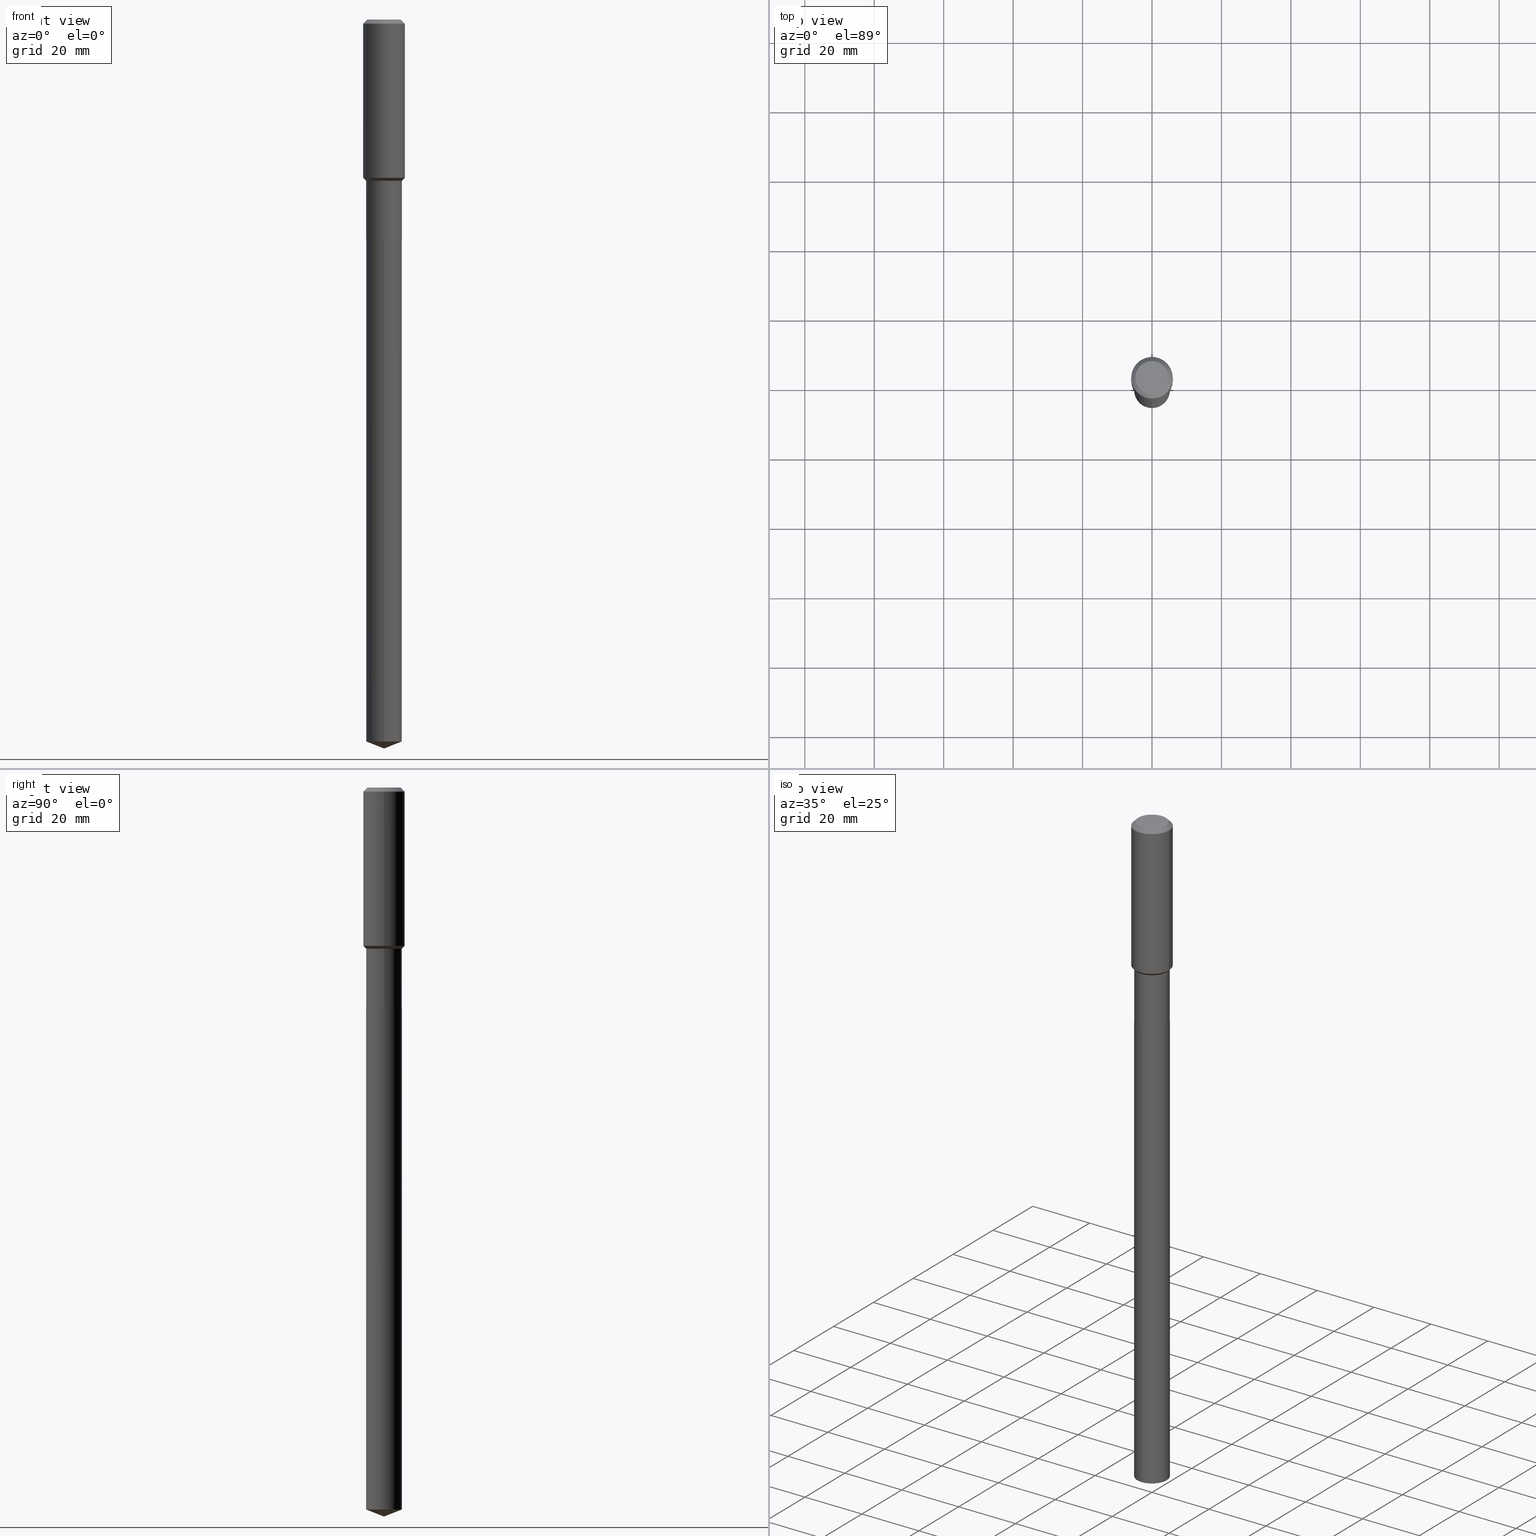
[diagram: canonical four-view strip — front | top / right | iso, engineering-drawing reading convention]
A machine part, canonical four-view strip (front | top / right | iso — engineering-drawing reading convention). The complete STEP part file that produces these views, byte-faithful:
ISO-10303-21;
HEADER;
FILE_DESCRIPTION (( 'STEP AP203' ),
    '1' );
FILE_NAME ('66782.STEP',
    '2024-04-25T06:05:33',
    ( '' ),
    ( '' ),
    'SwSTEP 2.0',
    'SolidWorks 2023',
    '' );
FILE_SCHEMA (( 'CONFIG_CONTROL_DESIGN' ));
ENDSEC;

DATA;
#1 = CARTESIAN_POINT ( 'NONE',  ( 6.109514718492326640E-29, -8.722767828831831042E-15, -2.498299999999999965 ) ) ;
#2 = EDGE_LOOP ( 'NONE', ( #453, #384, #380, #451 ) ) ;
#3 = FACE_OUTER_BOUND ( 'NONE', #84, .T. ) ;
#4 = ORIENTED_EDGE ( 'NONE', *, *, #438, .F. ) ;
#5 = FACE_OUTER_BOUND ( 'NONE', #448, .T. ) ;
#6 = AXIS2_PLACEMENT_3D ( 'NONE', #251, #396, #361 ) ;
#7 = AXIS2_PLACEMENT_3D ( 'NONE', #429, #91, #95 ) ;
#8 = VERTEX_POINT ( 'NONE', #293 ) ;
#9 = CARTESIAN_POINT ( 'NONE',  ( -0.2022500000000000131, -7.285695145757028125E-15, -2.498299999999999965 ) ) ;
#10 = ORIENTED_EDGE ( 'NONE', *, *, #294, .T. ) ;
#11 = CYLINDRICAL_SURFACE ( 'NONE', #211, 0.2362000000000001043 ) ;
#12 = LINE ( 'NONE', #363, #400 ) ;
#13 = CARTESIAN_POINT ( 'NONE',  ( 2.021924021348307157E-28, -2.886741859814043896E-14, -8.268000000000000682 ) ) ;
#14 = CARTESIAN_POINT ( 'NONE',  ( 6.109514718492326640E-29, -8.722767828831831042E-15, -2.498299999999999965 ) ) ;
#15 = CARTESIAN_POINT ( 'NONE',  ( 0.000000000000000000, 0.000000000000000000, 0.000000000000000000 ) ) ;
#16 = ORIENTED_EDGE ( 'NONE', *, *, #63, .F. ) ;
#17 = EDGE_CURVE ( 'NONE', #347, #389, #53, .T. ) ;
#18 = DATE_AND_TIME ( #138, #329 ) ;
#19 = ORIENTED_EDGE ( 'NONE', *, *, #417, .T. ) ;
#20 = EDGE_CURVE ( 'NONE', #240, #303, #445, .T. ) ;
#21 = AXIS2_PLACEMENT_3D ( 'NONE', #46, #214, #94 ) ;
#22 = CONICAL_SURFACE ( 'NONE', #78, 99.94676754584064327, 1.195550537616121733 ) ;
#23 = LINE ( 'NONE', #288, #122 ) ;
#24 = PERSON_AND_ORGANIZATION ( #106, #67 ) ;
#25 = APPROVAL ( #341, 'UNSPECIFIED' ) ;
#26 = LINE ( 'NONE', #114, #456 ) ;
#27 = FACE_OUTER_BOUND ( 'NONE', #418, .T. ) ;
#28 = PERSON_AND_ORGANIZATION ( #106, #67 ) ;
#29 = DIRECTION ( 'NONE',  ( 1.000000000000000000, -6.982962677686264344E-15, 0.000000000000000000 ) ) ;
#30 = VERTEX_POINT ( 'NONE', #462 ) ;
#31 = SECURITY_CLASSIFICATION_LEVEL ( 'unclassified' ) ;
#32 = DIRECTION ( 'NONE',  ( -2.445481399792340349E-29, 3.491463304080846425E-15, 1.000000000000000000 ) ) ;
#33 = ORIENTED_EDGE ( 'NONE', *, *, #63, .T. ) ;
#34 = CARTESIAN_POINT ( 'NONE',  ( 0.2027500000000000135, -1.013681777106329942E-14, -2.497799999999999798 ) ) ;
#35 = CONICAL_SURFACE ( 'NONE', #246, 0.2022500000000000131, 0.7853981633972775267 ) ;
#36 = ORIENTED_EDGE ( 'NONE', *, *, #70, .T. ) ;
#37 = DIRECTION ( 'NONE',  ( 2.445468806185136597E-29, -3.491481338843145583E-15, -1.000000000000000000 ) ) ;
#38 = CC_DESIGN_PERSON_AND_ORGANIZATION_ASSIGNMENT ( #28, #187, ( #413 ) ) ;
#39 = ORIENTED_EDGE ( 'NONE', *, *, #115, .F. ) ;
#40 = EDGE_CURVE ( 'NONE', #88, #343, #423, .T. ) ;
#41 = LINE ( 'NONE', #9, #148 ) ;
#42 = ORIENTED_EDGE ( 'NONE', *, *, #306, .F. ) ;
#43 = CARTESIAN_POINT ( 'NONE',  ( -1.415795682900829336E-15, -0.2027500000000087288, -2.498299999999999521 ) ) ;
#44 = AXIS2_PLACEMENT_3D ( 'NONE', #93, #62, #99 ) ;
#45 = CIRCLE ( 'NONE', #435, 0.2027500000000000135 ) ;
#46 = CARTESIAN_POINT ( 'NONE',  ( 6.108291984089233838E-29, -8.721022088162408749E-15, -2.497799999999999798 ) ) ;
#47 = EDGE_CURVE ( 'NONE', #367, #343, #49, .T. ) ;
#48 = DIRECTION ( 'NONE',  ( 0.7071067811864267805, -2.468850131080992517E-15, 0.7071067811866682540 ) ) ;
#49 = LINE ( 'NONE', #98, #482 ) ;
#50 = CARTESIAN_POINT ( 'NONE',  ( 0.2027499999999999303, -7.802413347912771762E-15, -1.829200000000000159 ) ) ;
#51 = DIRECTION ( 'NONE',  ( -2.445481399792340349E-29, 3.491463304080846425E-15, 1.000000000000000000 ) ) ;
#52 = AXIS2_PLACEMENT_3D ( 'NONE', #421, #85, #348 ) ;
#53 = LINE ( 'NONE', #209, #112 ) ;
#54 = AXIS2_PLACEMENT_3D ( 'NONE', #318, #316, #159 ) ;
#55 = DATE_AND_TIME ( #431, #398 ) ;
#56 = DIRECTION ( 'NONE',  ( -2.445468806185136597E-29, 3.491481338843145583E-15, 1.000000000000000000 ) ) ;
#57 = UNCERTAINTY_MEASURE_WITH_UNIT (LENGTH_MEASURE( 1.000000000000000082E-05 ), #364, 'distance_accuracy_value', 'NONE');
#58 = CARTESIAN_POINT ( 'NONE',  ( 6.109514718492326640E-29, -8.722767828831831042E-15, -2.498299999999999965 ) ) ;
#59 = EDGE_CURVE ( 'NONE', #141, #88, #12, .T. ) ;
#60 = PERSON_AND_ORGANIZATION ( #106, #67 ) ;
#61 = CC_DESIGN_PERSON_AND_ORGANIZATION_ASSIGNMENT ( #300, #401, ( #413 ) ) ;
#62 = DIRECTION ( 'NONE',  ( -2.445468806185136597E-29, 3.491481338843145583E-15, 1.000000000000000000 ) ) ;
#63 = EDGE_CURVE ( 'NONE', #303, #240, #292, .T. ) ;
#64 = SHAPE_DEFINITION_REPRESENTATION ( #263, #225 ) ;
#65 = DIRECTION ( 'NONE',  ( -2.445468806185136597E-29, 3.491481338843145583E-15, 1.000000000000000000 ) ) ;
#66 = EDGE_CURVE ( 'NONE', #343, #88, #376, .T. ) ;
#67 = ORGANIZATION ( 'UNSPECIFIED', 'UNSPECIFIED', '' ) ;
#68 = AXIS2_PLACEMENT_3D ( 'NONE', #255, #51, #169 ) ;
#69 = CARTESIAN_POINT ( 'NONE',  ( 1.440625396753804185E-15, 0.2027499999999912983, -2.498300000000000409 ) ) ;
#70 = EDGE_CURVE ( 'NONE', #30, #326, #130, .T. ) ;
#71 = FACE_OUTER_BOUND ( 'NONE', #307, .T. ) ;
#72 = EDGE_LOOP ( 'NONE', ( #75, #387, #309 ) ) ;
#73 = ADVANCED_FACE ( 'NONE', ( #287 ), #172, .T. ) ;
#74 = CYLINDRICAL_SURFACE ( 'NONE', #237, 0.2027499999999999858 ) ;
#75 = ORIENTED_EDGE ( 'NONE', *, *, #17, .F. ) ;
#76 = LOCAL_TIME ( 2, 5, 33.00000000000000000, #472 ) ;
#77 = CARTESIAN_POINT ( 'NONE',  ( 0.000000000000000000, 0.000000000000000000, 0.000000000000000000 ) ) ;
#78 = AXIS2_PLACEMENT_3D ( 'NONE', #452, #342, #258 ) ;
#79 = ADVANCED_FACE ( 'NONE', ( #250 ), #133, .T. ) ;
#80 = ORIENTED_EDGE ( 'NONE', *, *, #115, .T. ) ;
#81 = LINE ( 'NONE', #43, #359 ) ;
#82 = EDGE_LOOP ( 'NONE', ( #242, #356, #116, #311 ) ) ;
#83 = FACE_OUTER_BOUND ( 'NONE', #2, .T. ) ;
#84 = EDGE_LOOP ( 'NONE', ( #206, #420, #19, #408 ) ) ;
#85 = DIRECTION ( 'NONE',  ( -2.445481399792340349E-29, 3.491463304080846425E-15, 1.000000000000000000 ) ) ;
#86 = AXIS2_PLACEMENT_3D ( 'NONE', #128, #252, #283 ) ;
#87 = AXIS2_PLACEMENT_3D ( 'NONE', #58, #269, #402 ) ;
#88 = VERTEX_POINT ( 'NONE', #324 ) ;
#89 = DIRECTION ( 'NONE',  ( -2.445468806185136597E-29, 3.491481338843145583E-15, 1.000000000000000000 ) ) ;
#90 = APPLICATION_CONTEXT ( 'configuration controlled 3d designs of mechanical parts and assemblies' ) ;
#91 = DIRECTION ( 'NONE',  ( -2.445468806185136597E-29, 3.491481338843145583E-15, 1.000000000000000000 ) ) ;
#92 = EDGE_CURVE ( 'NONE', #160, #247, #167, .T. ) ;
#93 = CARTESIAN_POINT ( 'NONE',  ( 6.109514718492326640E-29, -8.722767828831831042E-15, -2.498299999999999965 ) ) ;
#94 = DIRECTION ( 'NONE',  ( 1.000000000000000000, -6.982962677686271444E-15, 0.000000000000000000 ) ) ;
#95 = DIRECTION ( 'NONE',  ( 1.000000000000000000, -6.982962677686266711E-15, 4.876176775795935793E-29 ) ) ;
#96 = CONICAL_SURFACE ( 'NONE', #142, 0.2022500000000000131, 0.7853981633972775267 ) ;
#97 = DIRECTION ( 'NONE',  ( -2.445468806185136597E-29, 3.491481338843145583E-15, 1.000000000000000000 ) ) ;
#98 = CARTESIAN_POINT ( 'NONE',  ( -0.2362000000000001043, 1.678301941865357380E-15, -1.161852468318209317E-29 ) ) ;
#99 = DIRECTION ( 'NONE',  ( 1.000000000000000000, -6.982962677686264344E-15, 0.000000000000000000 ) ) ;
#100 = DESIGN_CONTEXT ( 'detailed design', #90, 'design' ) ;
#101 = ADVANCED_FACE ( 'NONE', ( #71 ), #35, .T. ) ;
#102 = COORDINATED_UNIVERSAL_TIME_OFFSET ( 5, 0, .BEHIND. ) ;
#103 = APPROVAL_DATE_TIME ( #265, #25 ) ;
#104 = EDGE_CURVE ( 'NONE', #367, #141, #406, .T. ) ;
#105 = DIRECTION ( 'NONE',  ( -2.445468806185136597E-29, 3.491481338843145583E-15, 1.000000000000000000 ) ) ;
#106 = PERSON ( 'UNSPECIFIED', 'UNSPECIFIED', 'UNSPECIFIED', ('UNSPECIFIED'), ('UNSPECIFIED'), ('UNSPECIFIED') ) ;
#107 = EDGE_CURVE ( 'NONE', #303, #486, #26, .T. ) ;
#108 = DATE_AND_TIME ( #135, #76 ) ;
#109 = DIRECTION ( 'NONE',  ( -6.497071151882126147E-15, -0.9304175679820254619, 0.3665012267242949706 ) ) ;
#110 = EDGE_CURVE ( 'NONE', #389, #197, #113, .T. ) ;
#111 = EDGE_LOOP ( 'NONE', ( #212, #134 ) ) ;
#112 = VECTOR ( 'NONE', #432, 39.37007874015748143 ) ;
#113 = CIRCLE ( 'NONE', #202, 0.2027500000000000135 ) ;
#114 = CARTESIAN_POINT ( 'NONE',  ( -0.2027499999999999858, 1.440625396753603026E-15, -9.973140895491819537E-30 ) ) ;
#115 = EDGE_CURVE ( 'NONE', #197, #389, #45, .T. ) ;
#116 = ORIENTED_EDGE ( 'NONE', *, *, #40, .T. ) ;
#117 = COORDINATED_UNIVERSAL_TIME_OFFSET ( 5, 0, .BEHIND. ) ;
#118 = DIRECTION ( 'NONE',  ( -2.445481399792340349E-29, 3.491463304080846425E-15, 1.000000000000000000 ) ) ;
#119 = EDGE_LOOP ( 'NONE', ( #124, #490, #377, #471 ) ) ;
#120 = CARTESIAN_POINT ( 'NONE',  ( 1.440625396753803199E-15, 0.2027499999999714253, -8.188134651069074010 ) ) ;
#121 = ORIENTED_EDGE ( 'NONE', *, *, #107, .F. ) ;
#122 = VECTOR ( 'NONE', #132, 39.37007874015748143 ) ;
#123 = CARTESIAN_POINT ( 'NONE',  ( 6.109514718492326640E-29, -8.722767828831831042E-15, -2.498299999999999965 ) ) ;
#124 = ORIENTED_EDGE ( 'NONE', *, *, #20, .T. ) ;
#125 = CARTESIAN_POINT ( 'NONE',  ( -9.427742298522546243E-47, 1.346031739168365344E-32, 3.855188123715862256E-18 ) ) ;
#126 = ORIENTED_EDGE ( 'NONE', *, *, #40, .F. ) ;
#127 = CARTESIAN_POINT ( 'NONE',  ( 0.2022500000000000131, -1.013507203039387713E-14, -2.498299999999999965 ) ) ;
#128 = CARTESIAN_POINT ( 'NONE',  ( 1.155239464041865331E-30, -1.649375784469511612E-16, -0.04724000000000027483 ) ) ;
#129 = DIRECTION ( 'NONE',  ( -0.7071067811865453523, 2.468850131082234184E-15, -0.7071067811865496822 ) ) ;
#130 = CIRCLE ( 'NONE', #298, 0.2022500000000000131 ) ;
#131 = DIRECTION ( 'NONE',  ( -2.445468806185136877E-29, 3.491481338843145188E-15, 1.000000000000000000 ) ) ;
#132 = DIRECTION ( 'NONE',  ( -2.445468806185136877E-29, 3.491481338843145188E-15, 1.000000000000000000 ) ) ;
#133 = CYLINDRICAL_SURFACE ( 'NONE', #68, 0.2027500000000000135 ) ;
#134 = ORIENTED_EDGE ( 'NONE', *, *, #465, .T. ) ;
#135 = CALENDAR_DATE ( 2024, 25, 4 ) ;
#136 = APPROVAL_PERSON_ORGANIZATION ( #190, #25, #443 ) ;
#137 = ORIENTED_EDGE ( 'NONE', *, *, #449, .F. ) ;
#138 = CALENDAR_DATE ( 2024, 25, 4 ) ;
#139 = DATE_TIME_ROLE ( 'classification_date' ) ;
#140 = AXIS2_PLACEMENT_3D ( 'NONE', #241, #37, #381 ) ;
#141 = VERTEX_POINT ( 'NONE', #368 ) ;
#142 = AXIS2_PLACEMENT_3D ( 'NONE', #337, #105, #29 ) ;
#143 = PLANE ( 'NONE',  #87 ) ;
#144 = PERSON_AND_ORGANIZATION ( #106, #67 ) ;
#145 = DIRECTION ( 'NONE',  ( 1.000000000000000000, -6.982962677686265922E-15, 4.876176775795935793E-29 ) ) ;
#146 = DIRECTION ( 'NONE',  ( -2.445481399792340349E-29, 3.491463304080846425E-15, 1.000000000000000000 ) ) ;
#147 = VERTEX_POINT ( 'NONE', #69 ) ;
#148 = VECTOR ( 'NONE', #164, 39.37007874015748143 ) ;
#149 = AXIS2_PLACEMENT_3D ( 'NONE', #150, #305, #375 ) ;
#150 = CARTESIAN_POINT ( 'NONE',  ( 4.391450608706959640E-29, -6.269827614227578953E-15, -1.795750000000000179 ) ) ;
#151 = APPROVAL ( #218, 'UNSPECIFIED' ) ;
#152 = ORIENTED_EDGE ( 'NONE', *, *, #294, .F. ) ;
#153 = DIRECTION ( 'NONE',  ( -2.445468806185136597E-29, 3.491481338843145583E-15, 1.000000000000000000 ) ) ;
#154 = ORIENTED_EDGE ( 'NONE', *, *, #306, .T. ) ;
#155 = FACE_OUTER_BOUND ( 'NONE', #82, .T. ) ;
#156 = APPLICATION_CONTEXT ( 'configuration controlled 3d designs of mechanical parts and assemblies' ) ;
#157 = ORIENTED_EDGE ( 'NONE', *, *, #224, .T. ) ;
#158 = VECTOR ( 'NONE', #285, 39.37007874015748143 ) ;
#159 = DIRECTION ( 'NONE',  ( 1.000000000000000000, -6.982962677686264344E-15, 0.000000000000000000 ) ) ;
#160 = VERTEX_POINT ( 'NONE', #483 ) ;
#161 = ADVANCED_FACE ( 'NONE', ( #231 ), #268, .T. ) ;
#162 = CARTESIAN_POINT ( 'NONE',  ( -0.2361999999999999933, 1.484438206022545019E-15, -0.04724000000000027483 ) ) ;
#163 = ORIENTED_EDGE ( 'NONE', *, *, #473, .T. ) ;
#164 = DIRECTION ( 'NONE',  ( -0.7071067811864267805, 7.493145998869918709E-15, 0.7071067811866682540 ) ) ;
#165 = DIRECTION ( 'NONE',  ( -2.445468806185136597E-29, 3.491481338843145583E-15, 1.000000000000000000 ) ) ;
#166 = DIRECTION ( 'NONE',  ( -1.000000000000000000, 6.982962677686265922E-15, -4.876176775795935793E-29 ) ) ;
#167 = CIRCLE ( 'NONE', #467, 0.1889600000000000168 ) ;
#168 = CC_DESIGN_APPROVAL ( #151, ( #413 ) ) ;
#169 = DIRECTION ( 'NONE',  ( -6.982962677686265922E-15, -1.000000000000000000, 2.694794568349458162E-15 ) ) ;
#170 = ADVANCED_FACE ( 'NONE', ( #188 ), #143, .F. ) ;
#171 = DIRECTION ( 'NONE',  ( 0.000000000000000000, 0.000000000000000000, 1.000000000000000000 ) ) ;
#172 = CYLINDRICAL_SURFACE ( 'NONE', #7, 0.2027499999999999858 ) ;
#173 = APPROVAL_ROLE ( '' ) ;
#174 = DIRECTION ( 'NONE',  ( -2.445468806185136597E-29, 3.491481338843145583E-15, 1.000000000000000000 ) ) ;
#175 = PERSON_AND_ORGANIZATION_ROLE ( 'design_owner' ) ;
#176 = LENGTH_MEASURE_WITH_UNIT ( LENGTH_MEASURE( 0.02539999999999999897 ), #210 );
#177 = COORDINATED_UNIVERSAL_TIME_OFFSET ( 5, 0, .BEHIND. ) ;
#178 = EDGE_CURVE ( 'NONE', #389, #147, #299, .T. ) ;
#179 = ORIENTED_EDGE ( 'NONE', *, *, #449, .T. ) ;
#180 = FACE_OUTER_BOUND ( 'NONE', #72, .T. ) ;
#181 = SECURITY_CLASSIFICATION ( '', '', #31 ) ;
#182 = EDGE_CURVE ( 'NONE', #347, #197, #272, .T. ) ;
#183 = CIRCLE ( 'NONE', #366, 0.2027500000000000135 ) ;
#184 = ADVANCED_FACE ( 'NONE', ( #227 ), #74, .T. ) ;
#185 = PLANE ( 'NONE',  #304 ) ;
#186 = ORIENTED_EDGE ( 'NONE', *, *, #215, .F. ) ;
#187 = PERSON_AND_ORGANIZATION_ROLE ( 'creator' ) ;
#188 = FACE_OUTER_BOUND ( 'NONE', #111, .T. ) ;
#189 = ORIENTED_EDGE ( 'NONE', *, *, #338, .T. ) ;
#190 = PERSON_AND_ORGANIZATION ( #106, #67 ) ;
#191 = CARTESIAN_POINT ( 'NONE',  ( 4.473251540273852813E-29, -6.386617665011882669E-15, -1.829200000000000159 ) ) ;
#192 = EDGE_LOOP ( 'NONE', ( #157, #340, #126, #360 ) ) ;
#193 = AXIS2_PLACEMENT_3D ( 'NONE', #428, #399, #365 ) ;
#194 = CARTESIAN_POINT ( 'NONE',  ( -0.1889600000000000168, 1.401969416799070942E-15, 3.855188123706346622E-18 ) ) ;
#195 = EDGE_LOOP ( 'NONE', ( #137, #10, #154, #278 ) ) ;
#196 = LINE ( 'NONE', #162, #430 ) ;
#197 = VERTEX_POINT ( 'NONE', #339 ) ;
#198 = CARTESIAN_POINT ( 'NONE',  ( -0.2362000000000002153, -4.591525672362220981E-15, -1.795750000000000179 ) ) ;
#199 = ORIENTED_EDGE ( 'NONE', *, *, #297, .T. ) ;
#200 = ADVANCED_FACE ( 'NONE', ( #180 ), #22, .T. ) ;
#201 = DIRECTION ( 'NONE',  ( 0.7071067811865486830, -2.468850131082268893E-15, 0.7071067811865464625 ) ) ;
#202 = AXIS2_PLACEMENT_3D ( 'NONE', #344, #146, #442 ) ;
#203 = CARTESIAN_POINT ( 'NONE',  ( 6.108291984089233838E-29, -8.721022088162408749E-15, -2.497799999999999798 ) ) ;
#204 = ADVANCED_FACE ( 'NONE', ( #439 ), #96, .T. ) ;
#205 = CYLINDRICAL_SURFACE ( 'NONE', #228, 0.2362000000000001043 ) ;
#206 = ORIENTED_EDGE ( 'NONE', *, *, #178, .F. ) ;
#207 = LINE ( 'NONE', #50, #313 ) ;
#208 = CC_DESIGN_PERSON_AND_ORGANIZATION_ASSIGNMENT ( #144, #226, ( #181 ) ) ;
#209 = CARTESIAN_POINT ( 'NONE',  ( 2.021924076526295563E-28, -2.886741859814043896E-14, -8.268000000000000682 ) ) ;
#210 =( LENGTH_UNIT ( ) NAMED_UNIT ( * ) SI_UNIT ( $, .METRE. ) );
#211 = AXIS2_PLACEMENT_3D ( 'NONE', #77, #357, #412 ) ;
#212 = ORIENTED_EDGE ( 'NONE', *, *, #215, .T. ) ;
#213 = APPROVAL_ROLE ( '' ) ;
#214 = DIRECTION ( 'NONE',  ( -2.445468806185136597E-29, 3.491481338843145583E-15, 1.000000000000000000 ) ) ;
#215 = EDGE_CURVE ( 'NONE', #8, #147, #183, .T. ) ;
#216 = PERSON_AND_ORGANIZATION ( #106, #67 ) ;
#217 = EDGE_CURVE ( 'NONE', #291, #486, #446, .T. ) ;
#218 = APPROVAL_STATUS ( 'not_yet_approved' ) ;
#219 = CONICAL_SURFACE ( 'NONE', #52, 99.94676754584064327, 1.195550537616121733 ) ;
#220 = CIRCLE ( 'NONE', #54, 0.2027499999999999303 ) ;
#221 = ADVANCED_FACE ( 'NONE', ( #27 ), #185, .F. ) ;
#222 = CALENDAR_DATE ( 2024, 25, 4 ) ;
#223 = DIRECTION ( 'NONE',  ( -2.445481399792340629E-29, 3.491463304080846425E-15, 1.000000000000000000 ) ) ;
#224 = EDGE_CURVE ( 'NONE', #141, #367, #370, .T. ) ;
#225 = ADVANCED_BREP_SHAPE_REPRESENTATION ( '66782', ( #295, #440, #464 ), #487 ) ;
#226 = PERSON_AND_ORGANIZATION_ROLE ( 'classification_officer' ) ;
#227 = FACE_OUTER_BOUND ( 'NONE', #119, .T. ) ;
#228 = AXIS2_PLACEMENT_3D ( 'NONE', #355, #97, #256 ) ;
#229 = CLOSED_SHELL ( 'NONE', ( #101, #433, #262, #478, #184, #73, #161, #461, #336, #284, #221, #204 ) ) ;
#230 = CONICAL_SURFACE ( 'NONE', #385, 0.2361999999999999933, 0.7853981633974452814 ) ;
#231 = FACE_OUTER_BOUND ( 'NONE', #195, .T. ) ;
#232 = DATE_AND_TIME ( #222, #475 ) ;
#233 = CARTESIAN_POINT ( 'NONE',  ( 4.473251540273852813E-29, -6.386617665011882669E-15, -1.829200000000000159 ) ) ;
#234 = ORIENTED_EDGE ( 'NONE', *, *, #178, .T. ) ;
#235 = CARTESIAN_POINT ( 'NONE',  ( 6.109514718492326640E-29, -8.722767828831831042E-15, -2.498299999999999965 ) ) ;
#236 = ORIENTED_EDGE ( 'NONE', *, *, #372, .F. ) ;
#237 = AXIS2_PLACEMENT_3D ( 'NONE', #407, #484, #410 ) ;
#238 = CC_DESIGN_APPROVAL ( #25, ( #181 ) ) ;
#239 = DIRECTION ( 'NONE',  ( -2.445481399792340629E-29, 3.491463304080846425E-15, 1.000000000000000000 ) ) ;
#240 = VERTEX_POINT ( 'NONE', #34 ) ;
#241 = CARTESIAN_POINT ( 'NONE',  ( 1.155239464041865331E-30, -1.649375784469511612E-16, -0.04724000000000027483 ) ) ;
#242 = ORIENTED_EDGE ( 'NONE', *, *, #92, .F. ) ;
#243 = PLANE ( 'NONE',  #276 ) ;
#244 = ORIENTED_EDGE ( 'NONE', *, *, #438, .T. ) ;
#245 = LINE ( 'NONE', #314, #480 ) ;
#246 = AXIS2_PLACEMENT_3D ( 'NONE', #1, #334, #404 ) ;
#247 = VERTEX_POINT ( 'NONE', #194 ) ;
#248 = CC_DESIGN_DATE_AND_TIME_ASSIGNMENT ( #18, #468, ( #319 ) ) ;
#249 = DIRECTION ( 'NONE',  ( 2.438088387897960049E-29, -3.491481338843145188E-15, -1.000000000000000000 ) ) ;
#250 = FACE_OUTER_BOUND ( 'NONE', #374, .T. ) ;
#251 = CARTESIAN_POINT ( 'NONE',  ( 6.109514718492326640E-29, -8.722767828831831042E-15, -2.498299999999999965 ) ) ;
#252 = DIRECTION ( 'NONE',  ( -2.445468806185136597E-29, 3.491481338843145583E-15, 1.000000000000000000 ) ) ;
#253 = LOCAL_TIME ( 2, 5, 33.00000000000000000, #117 ) ;
#254 = AXIS2_PLACEMENT_3D ( 'NONE', #125, #89, #279 ) ;
#255 = CARTESIAN_POINT ( 'NONE',  ( 6.109514718492326640E-29, -8.722767828831831042E-15, -2.498299999999999965 ) ) ;
#256 = DIRECTION ( 'NONE',  ( 1.000000000000000000, -6.982962677686266711E-15, 4.876176775795935793E-29 ) ) ;
#257 = PRODUCT ( '66782', '66782', '', ( #477 ) ) ;
#258 = DIRECTION ( 'NONE',  ( -6.982962677686265922E-15, -1.000000000000000000, 3.498627837349980557E-15 ) ) ;
#259 = APPROVAL_DATE_TIME ( #55, #409 ) ;
#260 = AXIS2_PLACEMENT_3D ( 'NONE', #358, #165, #320 ) ;
#261 = CC_DESIGN_DATE_AND_TIME_ASSIGNMENT ( #232, #139, ( #181 ) ) ;
#262 = ADVANCED_FACE ( 'NONE', ( #352 ), #11, .T. ) ;
#263 = PRODUCT_DEFINITION_SHAPE ( 'NONE', 'NONE',  #319 ) ;
#264 = CARTESIAN_POINT ( 'NONE',  ( 2.002389952557568366E-28, -2.858861671932714355E-14, -8.188134651069072234 ) ) ;
#265 = DATE_AND_TIME ( #271, #253 ) ;
#266 = DIRECTION ( 'NONE',  ( -2.438088387897960049E-29, 3.491481338843145188E-15, 1.000000000000000000 ) ) ;
#267 = CONICAL_SURFACE ( 'NONE', #140, 0.2361999999999999933, 0.7853981633974452814 ) ;
#268 = CONICAL_SURFACE ( 'NONE', #330, 0.2027499999999999303, 0.7853981633974498333 ) ;
#269 = DIRECTION ( 'NONE',  ( 2.445481399792339788E-29, -3.491463304080846425E-15, -1.000000000000000000 ) ) ;
#270 = EDGE_LOOP ( 'NONE', ( #289, #427, #39 ) ) ;
#271 = CALENDAR_DATE ( 2024, 25, 4 ) ;
#272 = LINE ( 'NONE', #308, #323 ) ;
#273 = ORIENTED_EDGE ( 'NONE', *, *, #473, .F. ) ;
#274 = DIRECTION ( 'NONE',  ( -2.445481399792340349E-29, 3.491463304080846425E-15, 1.000000000000000000 ) ) ;
#275 = ORIENTED_EDGE ( 'NONE', *, *, #297, .F. ) ;
#276 = AXIS2_PLACEMENT_3D ( 'NONE', #424, #249, #166 ) ;
#277 = CARTESIAN_POINT ( 'NONE',  ( -0.2027500000000000135, -6.113194479833541106E-15, -2.497799999999999798 ) ) ;
#278 = ORIENTED_EDGE ( 'NONE', *, *, #104, .F. ) ;
#279 = DIRECTION ( 'NONE',  ( 1.000000000000000000, -6.982962677686266711E-15, 4.876185090822587894E-29 ) ) ;
#280 = ORIENTED_EDGE ( 'NONE', *, *, #391, .F. ) ;
#281 = FACE_OUTER_BOUND ( 'NONE', #474, .T. ) ;
#282 = ADVANCED_FACE ( 'NONE', ( #3 ), #454, .T. ) ;
#283 = DIRECTION ( 'NONE',  ( 1.000000000000000000, -6.982962677686266711E-15, 0.000000000000000000 ) ) ;
#284 = ADVANCED_FACE ( 'NONE', ( #281 ), #243, .F. ) ;
#285 = DIRECTION ( 'NONE',  ( 0.7071067811865453523, -7.319954787623248157E-15, -0.7071067811865496822 ) ) ;
#286 = CIRCLE ( 'NONE', #254, 0.1889600000000000168 ) ;
#287 = FACE_OUTER_BOUND ( 'NONE', #317, .T. ) ;
#288 = CARTESIAN_POINT ( 'NONE',  ( 0.2027499999999999858, -1.415795682900890473E-15, 9.886448412926258951E-30 ) ) ;
#289 = ORIENTED_EDGE ( 'NONE', *, *, #182, .F. ) ;
#290 = APPLICATION_PROTOCOL_DEFINITION ( 'international standard', 'config_control_design', 1994, #90 ) ;
#291 = VERTEX_POINT ( 'NONE', #388 ) ;
#292 = CIRCLE ( 'NONE', #321, 0.2027500000000000135 ) ;
#293 = CARTESIAN_POINT ( 'NONE',  ( -1.415795682900829336E-15, -0.2027500000000087288, -2.498299999999999521 ) ) ;
#294 = EDGE_CURVE ( 'NONE', #486, #291, #220, .T. ) ;
#295 = MANIFOLD_SOLID_BREP ( 'Body-Move/Copy2[1]', #405 ) ;
#296 = FACE_OUTER_BOUND ( 'NONE', #349, .T. ) ;
#297 = EDGE_CURVE ( 'NONE', #247, #160, #286, .T. ) ;
#298 = AXIS2_PLACEMENT_3D ( 'NONE', #14, #328, #353 ) ;
#299 = LINE ( 'NONE', #371, #335 ) ;
#300 = PERSON_AND_ORGANIZATION ( #106, #67 ) ;
#301 = CARTESIAN_POINT ( 'NONE',  ( 4.391450608706959640E-29, -6.269827614227578953E-15, -1.795750000000000179 ) ) ;
#302 = DIRECTION ( 'NONE',  ( 1.000000000000000000, -6.982962677686264344E-15, 0.000000000000000000 ) ) ;
#303 = VERTEX_POINT ( 'NONE', #277 ) ;
#304 = AXIS2_PLACEMENT_3D ( 'NONE', #397, #266, #145 ) ;
#305 = DIRECTION ( 'NONE',  ( -2.445468806185136597E-29, 3.491481338843145583E-15, 1.000000000000000000 ) ) ;
#306 = EDGE_CURVE ( 'NONE', #291, #141, #207, .T. ) ;
#307 = EDGE_LOOP ( 'NONE', ( #36, #244, #466, #280 ) ) ;
#308 = CARTESIAN_POINT ( 'NONE',  ( 2.021917728826531730E-28, -2.886750871063374858E-14, -8.268000000000000682 ) ) ;
#309 = ORIENTED_EDGE ( 'NONE', *, *, #110, .F. ) ;
#310 = DIRECTION ( 'NONE',  ( 2.445468806185136597E-29, -3.491481338843145583E-15, -1.000000000000000000 ) ) ;
#311 = ORIENTED_EDGE ( 'NONE', *, *, #338, .F. ) ;
#312 = CIRCLE ( 'NONE', #44, 0.2022500000000000131 ) ;
#313 = VECTOR ( 'NONE', #201, 39.37007874015748143 ) ;
#314 = CARTESIAN_POINT ( 'NONE',  ( -0.2027499999999999303, -4.945992268258279643E-15, -1.829200000000000159 ) ) ;
#315 = ORIENTED_EDGE ( 'NONE', *, *, #481, .T. ) ;
#316 = DIRECTION ( 'NONE',  ( -2.445468806185136597E-29, 3.491481338843145583E-15, 1.000000000000000000 ) ) ;
#317 = EDGE_LOOP ( 'NONE', ( #121, #33, #315, #152 ) ) ;
#318 = CARTESIAN_POINT ( 'NONE',  ( 4.473251540273852813E-29, -6.386617665011882669E-15, -1.829200000000000159 ) ) ;
#319 = PRODUCT_DEFINITION ( 'UNKNOWN', '', #413, #100 ) ;
#320 = DIRECTION ( 'NONE',  ( 1.000000000000000000, -6.982962677686266711E-15, 0.000000000000000000 ) ) ;
#321 = AXIS2_PLACEMENT_3D ( 'NONE', #203, #174, #392 ) ;
#322 = CARTESIAN_POINT ( 'NONE',  ( -0.2022500000000000131, -7.283045918582916136E-15, -2.498299999999999965 ) ) ;
#323 = VECTOR ( 'NONE', #109, 39.37007874015748854 ) ;
#324 = CARTESIAN_POINT ( 'NONE',  ( 0.2361999999999999933, -1.814313362916447440E-15, -0.04724000000000027483 ) ) ;
#325 = CARTESIAN_POINT ( 'NONE',  ( -0.2027499999999999303, -6.113194479833541894E-15, -1.829200000000000159 ) ) ;
#326 = VERTEX_POINT ( 'NONE', #322 ) ;
#327 = PERSON_AND_ORGANIZATION_ROLE ( 'creator' ) ;
#328 = DIRECTION ( 'NONE',  ( -2.445468806185136597E-29, 3.491481338843145583E-15, 1.000000000000000000 ) ) ;
#329 = LOCAL_TIME ( 2, 5, 33.00000000000000000, #177 ) ;
#330 = AXIS2_PLACEMENT_3D ( 'NONE', #233, #153, #302 ) ;
#331 = APPLICATION_PROTOCOL_DEFINITION ( 'international standard', 'config_control_design', 1994, #156 ) ;
#332 = CC_DESIGN_PERSON_AND_ORGANIZATION_ASSIGNMENT ( #24, #327, ( #319 ) ) ;
#333 = ORIENTED_EDGE ( 'NONE', *, *, #92, .T. ) ;
#334 = DIRECTION ( 'NONE',  ( -2.445468806185136597E-29, 3.491481338843145583E-15, 1.000000000000000000 ) ) ;
#335 = VECTOR ( 'NONE', #223, 39.37007874015748143 ) ;
#336 = ADVANCED_FACE ( 'NONE', ( #5 ), #230, .T. ) ;
#337 = CARTESIAN_POINT ( 'NONE',  ( 6.109514718492326640E-29, -8.722767828831831042E-15, -2.498299999999999965 ) ) ;
#338 = EDGE_CURVE ( 'NONE', #247, #343, #196, .T. ) ;
#339 = CARTESIAN_POINT ( 'NONE',  ( -1.415795682900690300E-15, -0.2027500000000285463, -8.188134651069070458 ) ) ;
#340 = ORIENTED_EDGE ( 'NONE', *, *, #47, .T. ) ;
#341 = APPROVAL_STATUS ( 'not_yet_approved' ) ;
#342 = DIRECTION ( 'NONE',  ( -2.445481399792340349E-29, 3.491463304080846425E-15, 1.000000000000000000 ) ) ;
#343 = VERTEX_POINT ( 'NONE', #463 ) ;
#344 = CARTESIAN_POINT ( 'NONE',  ( 2.002389952557568366E-28, -2.858861671932714355E-14, -8.188134651069072234 ) ) ;
#345 = ORIENTED_EDGE ( 'NONE', *, *, #391, .T. ) ;
#346 = FACE_OUTER_BOUND ( 'NONE', #270, .T. ) ;
#347 = VERTEX_POINT ( 'NONE', #13 ) ;
#348 = DIRECTION ( 'NONE',  ( -6.982962677686265922E-15, -1.000000000000000000, 3.498627837349980557E-15 ) ) ;
#349 = EDGE_LOOP ( 'NONE', ( #459, #179, #411, #42 ) ) ;
#350 = APPROVAL_PERSON_ORGANIZATION ( #394, #409, #213 ) ;
#351 = AXIS2_PLACEMENT_3D ( 'NONE', #301, #65, #444 ) ;
#352 = FACE_OUTER_BOUND ( 'NONE', #192, .T. ) ;
#353 = DIRECTION ( 'NONE',  ( 1.000000000000000000, -6.982962677686264344E-15, 0.000000000000000000 ) ) ;
#354 = CC_DESIGN_PERSON_AND_ORGANIZATION_ASSIGNMENT ( #216, #175, ( #257 ) ) ;
#355 = CARTESIAN_POINT ( 'NONE',  ( 0.000000000000000000, 0.000000000000000000, 0.000000000000000000 ) ) ;
#356 = ORIENTED_EDGE ( 'NONE', *, *, #372, .T. ) ;
#357 = DIRECTION ( 'NONE',  ( -2.445468806185136597E-29, 3.491481338843145583E-15, 1.000000000000000000 ) ) ;
#358 = CARTESIAN_POINT ( 'NONE',  ( 1.155239464041865331E-30, -1.649375784469511612E-16, -0.04724000000000027483 ) ) ;
#359 = VECTOR ( 'NONE', #239, 39.37007874015748143 ) ;
#360 = ORIENTED_EDGE ( 'NONE', *, *, #59, .F. ) ;
#361 = DIRECTION ( 'NONE',  ( -6.982962677686265922E-15, -1.000000000000000000, 2.694794568349458162E-15 ) ) ;
#362 = DIMENSIONAL_EXPONENTS ( 1.000000000000000000, 0.000000000000000000, 0.000000000000000000, 0.000000000000000000, 0.000000000000000000, 0.000000000000000000, 0.000000000000000000 ) ;
#363 = CARTESIAN_POINT ( 'NONE',  ( 0.2362000000000001043, -1.649375784469496920E-15, 1.151752954443000508E-29 ) ) ;
#364 =( CONVERSION_BASED_UNIT ( 'INCH', #176 ) LENGTH_UNIT ( ) NAMED_UNIT ( #362 ) );
#365 = DIRECTION ( 'NONE',  ( 1.000000000000000000, -6.982962677686264344E-15, 0.000000000000000000 ) ) ;
#366 = AXIS2_PLACEMENT_3D ( 'NONE', #235, #32, #485 ) ;
#367 = VERTEX_POINT ( 'NONE', #198 ) ;
#368 = CARTESIAN_POINT ( 'NONE',  ( 0.2362000000000002153, -7.919203398697075478E-15, -1.795750000000000179 ) ) ;
#369 = DIRECTION ( 'NONE',  ( 1.000000000000000000, -6.982962677686264344E-15, 0.000000000000000000 ) ) ;
#370 = CIRCLE ( 'NONE', #149, 0.2362000000000002153 ) ;
#371 = CARTESIAN_POINT ( 'NONE',  ( 1.440625396753664163E-15, 0.2027499999999912983, -2.498300000000000409 ) ) ;
#372 = EDGE_CURVE ( 'NONE', #160, #88, #383, .T. ) ;
#373 = DIRECTION ( 'NONE',  ( -6.982962677686265922E-15, -1.000000000000000000, 5.389589136698916324E-15 ) ) ;
#374 = EDGE_LOOP ( 'NONE', ( #80, #234, #186, #425 ) ) ;
#375 = DIRECTION ( 'NONE',  ( 1.000000000000000000, -6.982962677686266711E-15, 0.000000000000000000 ) ) ;
#376 = CIRCLE ( 'NONE', #260, 0.2361999999999999933 ) ;
#377 = ORIENTED_EDGE ( 'NONE', *, *, #217, .F. ) ;
#378 = CONICAL_SURFACE ( 'NONE', #193, 0.2027499999999999303, 0.7853981633974498333 ) ;
#379 = DIRECTION ( 'NONE',  ( -1.000000000000000000, 6.982962677686266711E-15, 0.000000000000000000 ) ) ;
#380 = ORIENTED_EDGE ( 'NONE', *, *, #59, .T. ) ;
#381 = DIRECTION ( 'NONE',  ( -1.000000000000000000, 6.982962677686266711E-15, 0.000000000000000000 ) ) ;
#382 = EDGE_LOOP ( 'NONE', ( #4, #163, #345, #16 ) ) ;
#383 = LINE ( 'NONE', #419, #158 ) ;
#384 = ORIENTED_EDGE ( 'NONE', *, *, #104, .T. ) ;
#385 = AXIS2_PLACEMENT_3D ( 'NONE', #416, #310, #379 ) ;
#386 = DIRECTION ( 'NONE',  ( -0.7071067811865486830, 7.493145998870358893E-15, 0.7071067811865464625 ) ) ;
#387 = ORIENTED_EDGE ( 'NONE', *, *, #182, .T. ) ;
#388 = CARTESIAN_POINT ( 'NONE',  ( 0.2027499999999999303, -7.802413347912771762E-15, -1.829200000000000159 ) ) ;
#389 = VERTEX_POINT ( 'NONE', #120 ) ;
#390 =( NAMED_UNIT ( * ) PLANE_ANGLE_UNIT ( ) SI_UNIT ( $, .RADIAN. ) );
#391 = EDGE_CURVE ( 'NONE', #30, #240, #460, .T. ) ;
#392 = DIRECTION ( 'NONE',  ( 1.000000000000000000, -6.982962677686271444E-15, 0.000000000000000000 ) ) ;
#393 = APPROVAL_PERSON_ORGANIZATION ( #60, #151, #173 ) ;
#394 = PERSON_AND_ORGANIZATION ( #106, #67 ) ;
#395 = CARTESIAN_POINT ( 'NONE',  ( -9.427742298522546243E-47, 1.346031739168365344E-32, 3.855188123715862256E-18 ) ) ;
#396 = DIRECTION ( 'NONE',  ( -2.445481399792340349E-29, 3.491463304080846425E-15, 1.000000000000000000 ) ) ;
#397 = CARTESIAN_POINT ( 'NONE',  ( 6.109514718492326640E-29, -8.722767828831831042E-15, -2.498299999999999965 ) ) ;
#398 = LOCAL_TIME ( 2, 5, 33.00000000000000000, #102 ) ;
#399 = DIRECTION ( 'NONE',  ( -2.445468806185136597E-29, 3.491481338843145583E-15, 1.000000000000000000 ) ) ;
#400 = VECTOR ( 'NONE', #131, 39.37007874015748143 ) ;
#401 = PERSON_AND_ORGANIZATION_ROLE ( 'design_supplier' ) ;
#402 = DIRECTION ( 'NONE',  ( 6.982962677686265922E-15, 1.000000000000000000, -3.491463304080846425E-15 ) ) ;
#403 = CC_DESIGN_SECURITY_CLASSIFICATION ( #181, ( #413 ) ) ;
#404 = DIRECTION ( 'NONE',  ( 1.000000000000000000, -6.982962677686264344E-15, 0.000000000000000000 ) ) ;
#405 = CLOSED_SHELL ( 'NONE', ( #79, #447, #200, #282, #170 ) ) ;
#406 = CIRCLE ( 'NONE', #351, 0.2362000000000002153 ) ;
#407 = CARTESIAN_POINT ( 'NONE',  ( 0.000000000000000000, 0.000000000000000000, 0.000000000000000000 ) ) ;
#408 = ORIENTED_EDGE ( 'NONE', *, *, #465, .F. ) ;
#409 = APPROVAL ( #476, 'UNSPECIFIED' ) ;
#410 = DIRECTION ( 'NONE',  ( 1.000000000000000000, -6.982962677686266711E-15, 4.876176775795935793E-29 ) ) ;
#411 = ORIENTED_EDGE ( 'NONE', *, *, #224, .F. ) ;
#412 = DIRECTION ( 'NONE',  ( 1.000000000000000000, -6.982962677686266711E-15, 4.876176775795935793E-29 ) ) ;
#413 = PRODUCT_DEFINITION_FORMATION_WITH_SPECIFIED_SOURCE ( 'ANY', '', #257, .NOT_KNOWN. ) ;
#414 = AXIS2_PLACEMENT_3D ( 'NONE', #191, #488, #369 ) ;
#415 = ORIENTED_EDGE ( 'NONE', *, *, #70, .F. ) ;
#416 = CARTESIAN_POINT ( 'NONE',  ( 1.155239464041865331E-30, -1.649375784469511612E-16, -0.04724000000000027483 ) ) ;
#417 = EDGE_CURVE ( 'NONE', #197, #8, #81, .T. ) ;
#418 = EDGE_LOOP ( 'NONE', ( #415, #273 ) ) ;
#419 = CARTESIAN_POINT ( 'NONE',  ( 0.2361999999999999933, -1.785387205520586782E-15, -0.04724000000000027483 ) ) ;
#420 = ORIENTED_EDGE ( 'NONE', *, *, #110, .T. ) ;
#421 = CARTESIAN_POINT ( 'NONE',  ( -7.605958651654079238E-28, 1.085917215456462344E-13, 31.10207874015748430 ) ) ;
#422 = DIRECTION ( 'NONE',  ( -2.445468806185136877E-29, 3.491481338843145188E-15, 1.000000000000000000 ) ) ;
#423 = CIRCLE ( 'NONE', #86, 0.2361999999999999933 ) ;
#424 = CARTESIAN_POINT ( 'NONE',  ( -4.713871149261273121E-47, 6.730158695841826722E-33, 1.927594061857931128E-18 ) ) ;
#425 = ORIENTED_EDGE ( 'NONE', *, *, #417, .F. ) ;
#426 =( NAMED_UNIT ( * ) SI_UNIT ( $, .STERADIAN. ) SOLID_ANGLE_UNIT ( ) );
#427 = ORIENTED_EDGE ( 'NONE', *, *, #17, .T. ) ;
#428 = CARTESIAN_POINT ( 'NONE',  ( 4.473251540273852813E-29, -6.386617665011882669E-15, -1.829200000000000159 ) ) ;
#429 = CARTESIAN_POINT ( 'NONE',  ( 0.000000000000000000, 0.000000000000000000, 0.000000000000000000 ) ) ;
#430 = VECTOR ( 'NONE', #129, 39.37007874015748143 ) ;
#431 = CALENDAR_DATE ( 2024, 25, 4 ) ;
#432 = DIRECTION ( 'NONE',  ( 6.611014441532073689E-15, 0.9304175679820279043, 0.3665012267242884203 ) ) ;
#433 = ADVANCED_FACE ( 'NONE', ( #155 ), #267, .T. ) ;
#434 = VECTOR ( 'NONE', #48, 39.37007874015748143 ) ;
#435 = AXIS2_PLACEMENT_3D ( 'NONE', #264, #118, #373 ) ;
#436 = CC_DESIGN_APPROVAL ( #409, ( #319 ) ) ;
#437 = PRODUCT_RELATED_PRODUCT_CATEGORY ( 'detail', '', ( #257 ) ) ;
#438 = EDGE_CURVE ( 'NONE', #326, #303, #41, .T. ) ;
#439 = FACE_OUTER_BOUND ( 'NONE', #382, .T. ) ;
#440 = MANIFOLD_SOLID_BREP ( 'Body-Move/Copy2[2]', #229 ) ;
#441 = COORDINATED_UNIVERSAL_TIME_OFFSET ( 5, 0, .BEHIND. ) ;
#442 = DIRECTION ( 'NONE',  ( -6.982962677686265922E-15, -1.000000000000000000, 5.389589136698916324E-15 ) ) ;
#443 = APPROVAL_ROLE ( '' ) ;
#444 = DIRECTION ( 'NONE',  ( 1.000000000000000000, -6.982962677686266711E-15, 0.000000000000000000 ) ) ;
#445 = CIRCLE ( 'NONE', #21, 0.2027500000000000135 ) ;
#447 = ADVANCED_FACE ( 'NONE', ( #346 ), #219, .T. ) ;
#446 = CIRCLE ( 'NONE', #414, 0.2027499999999999303 ) ;
#448 = EDGE_LOOP ( 'NONE', ( #236, #275, #189, #457 ) ) ;
#449 = EDGE_CURVE ( 'NONE', #486, #367, #245, .T. ) ;
#450 = DIRECTION ( 'NONE',  ( -2.445468806185136877E-29, 3.491481338843145188E-15, 1.000000000000000000 ) ) ;
#451 = ORIENTED_EDGE ( 'NONE', *, *, #66, .F. ) ;
#452 = CARTESIAN_POINT ( 'NONE',  ( -7.605958651654079238E-28, 1.085917215456462344E-13, 31.10207874015748430 ) ) ;
#453 = ORIENTED_EDGE ( 'NONE', *, *, #47, .F. ) ;
#454 = CYLINDRICAL_SURFACE ( 'NONE', #489, 0.2027500000000000135 ) ;
#455 = CIRCLE ( 'NONE', #6, 0.2027500000000000135 ) ;
#456 = VECTOR ( 'NONE', #450, 39.37007874015748143 ) ;
#457 = ORIENTED_EDGE ( 'NONE', *, *, #66, .T. ) ;
#458 = DIRECTION ( 'NONE',  ( -6.982962677686265922E-15, -1.000000000000000000, 2.694794568349458162E-15 ) ) ;
#459 = ORIENTED_EDGE ( 'NONE', *, *, #217, .T. ) ;
#460 = LINE ( 'NONE', #127, #434 ) ;
#461 = ADVANCED_FACE ( 'NONE', ( #83 ), #205, .T. ) ;
#462 = CARTESIAN_POINT ( 'NONE',  ( 0.2022500000000000131, -1.013507203039387713E-14, -2.498299999999999965 ) ) ;
#463 = CARTESIAN_POINT ( 'NONE',  ( -0.2361999999999999933, -1.539080654471907356E-15, -0.04724000000000027483 ) ) ;
#464 = AXIS2_PLACEMENT_3D ( 'NONE', #15, #171, #470 ) ;
#465 = EDGE_CURVE ( 'NONE', #147, #8, #455, .T. ) ;
#466 = ORIENTED_EDGE ( 'NONE', *, *, #20, .F. ) ;
#467 = AXIS2_PLACEMENT_3D ( 'NONE', #395, #56, #469 ) ;
#468 = DATE_TIME_ROLE ( 'creation_date' ) ;
#469 = DIRECTION ( 'NONE',  ( 1.000000000000000000, -6.982962677686266711E-15, 4.876185090822587894E-29 ) ) ;
#470 = DIRECTION ( 'NONE',  ( 1.000000000000000000, 0.000000000000000000, 0.000000000000000000 ) ) ;
#471 = ORIENTED_EDGE ( 'NONE', *, *, #481, .F. ) ;
#472 = COORDINATED_UNIVERSAL_TIME_OFFSET ( 5, 0, .BEHIND. ) ;
#473 = EDGE_CURVE ( 'NONE', #326, #30, #312, .T. ) ;
#474 = EDGE_LOOP ( 'NONE', ( #199, #333 ) ) ;
#475 = LOCAL_TIME ( 2, 5, 33.00000000000000000, #441 ) ;
#476 = APPROVAL_STATUS ( 'not_yet_approved' ) ;
#477 = MECHANICAL_CONTEXT ( 'NONE', #156, 'mechanical' ) ;
#478 = ADVANCED_FACE ( 'NONE', ( #296 ), #378, .T. ) ;
#479 = APPROVAL_DATE_TIME ( #108, #151 ) ;
#480 = VECTOR ( 'NONE', #386, 39.37007874015748143 ) ;
#481 = EDGE_CURVE ( 'NONE', #240, #291, #23, .T. ) ;
#482 = VECTOR ( 'NONE', #422, 39.37007874015748143 ) ;
#483 = CARTESIAN_POINT ( 'NONE',  ( 0.1889600000000000168, -1.540873453589747738E-15, 3.855188123725863225E-18 ) ) ;
#484 = DIRECTION ( 'NONE',  ( -2.445468806185136597E-29, 3.491481338843145583E-15, 1.000000000000000000 ) ) ;
#485 = DIRECTION ( 'NONE',  ( -6.982962677686265922E-15, -1.000000000000000000, 2.694794568349458162E-15 ) ) ;
#486 = VERTEX_POINT ( 'NONE', #325 ) ;
#487 =( GEOMETRIC_REPRESENTATION_CONTEXT ( 3 ) GLOBAL_UNCERTAINTY_ASSIGNED_CONTEXT ( ( #57 ) ) GLOBAL_UNIT_ASSIGNED_CONTEXT ( ( #364, #390, #426 ) ) REPRESENTATION_CONTEXT ( 'NONE', 'WORKASPACE' ) );
#488 = DIRECTION ( 'NONE',  ( -2.445468806185136597E-29, 3.491481338843145583E-15, 1.000000000000000000 ) ) ;
#489 = AXIS2_PLACEMENT_3D ( 'NONE', #123, #274, #458 ) ;
#490 = ORIENTED_EDGE ( 'NONE', *, *, #107, .T. ) ;
ENDSEC;
END-ISO-10303-21;
